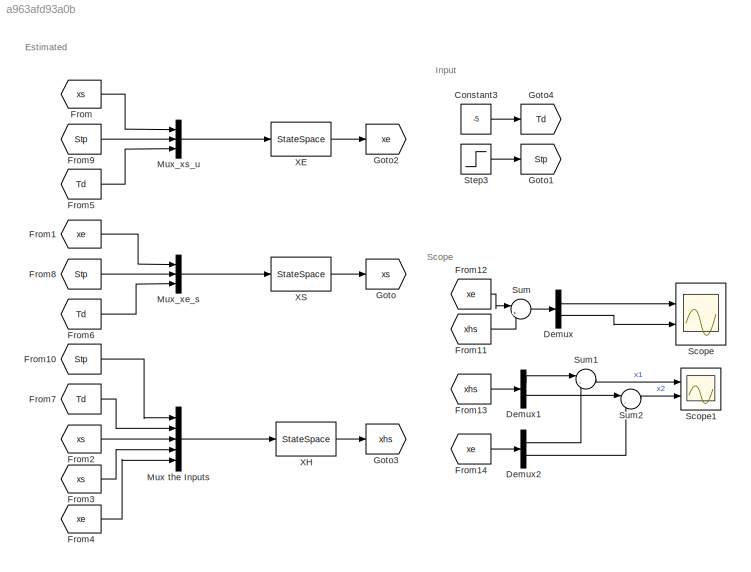
MODEL slx_a963afd93a0b
KIND model
CONFIG AbsTol = auto
CONFIG EnableMultiTasking = off
CONFIG FixedStep = auto
CONFIG MaxStep = .01
CONFIG MinStep = auto
CONFIG PreLoadFcn = A = [-5 , 1  , 1 ; \n      2 ,-7  , 2 ;\n      2 , 1  ,-6 ] ;\nB = [0   , 3.54  ;\n     0   , 0.026 ;\n     144 , 0.026 ] ;\nC = [0 , 0 , 1] ;\nD= [0] ;\nN = obsv(A,C)\ndet (N)\nA_ss = -6 ;\nA_se = [1,2] ;\nA_es = [2 ;\n        1 ] ;\nA_ee = [-7 , 2 ;\n         1 ,-5 ] ;\nB_e = [0 ,  3.54  ;\n       0 ,  0.026 ] ;\nB_s = [144 ,0.026 ] ;\nC_e = [0,0] ;\nC_s = 1 ;\nC_re = C_s*A_se ;\nL = [-13,13]' ;\nA_obs = A_ee - L*C_s*...<+58ch>
CONFIG RelTol = 1e-3
CONFIG SampleTimeConstraint = Unconstrained
CONFIG SolverName = VariableStepAuto
CONFIG StartTime = 0.0
CONFIG StopTime = 10.0
BLOCK [Constant] Constant3
  Value = -5
BLOCK [Demux] Demux
  Outputs = 2
  Ports = [1, 2]
BLOCK [Demux] Demux1
  Outputs = 2
  Ports = [1, 2]
BLOCK [Demux] Demux2
  Outputs = 2
  Ports = [1, 2]
BLOCK [From] From
  GotoTag = xs
BLOCK [From] From1
  GotoTag = xe
BLOCK [From] From10
  GotoTag = Stp
BLOCK [From] From11
  GotoTag = xhs
BLOCK [From] From12
  GotoTag = xe
BLOCK [From] From13
  GotoTag = xhs
BLOCK [From] From14
  GotoTag = xe
BLOCK [From] From2
  GotoTag = xs
BLOCK [From] From3
  GotoTag = xs
BLOCK [From] From4
  GotoTag = xe
BLOCK [From] From5
  GotoTag = Td
BLOCK [From] From6
  GotoTag = Td
BLOCK [From] From7
  GotoTag = Td
BLOCK [From] From8
  GotoTag = Stp
BLOCK [From] From9
  GotoTag = Stp
BLOCK [Goto] Goto
  GotoTag = xs
BLOCK [Goto] Goto1
  GotoTag = Stp
BLOCK [Goto] Goto2
  GotoTag = xe
BLOCK [Goto] Goto3
  GotoTag = xhs
BLOCK [Goto] Goto4
  GotoTag = Td
BLOCK [Mux] Mux the Inputs
  DisplayOption = bar
  Inputs = 5
  Ports = [5, 1]
BLOCK [Mux] Mux_xe_s
  DisplayOption = bar
  Inputs = 3
  Ports = [3, 1]
BLOCK [Mux] Mux_xs_u
  DisplayOption = bar
  Inputs = 3
  Ports = [3, 1]
BLOCK [Scope] Scope
  Floating = off
  NumInputPorts = 2
  Ports = [2]
  ScopeSpecificationString = Simulink.scopes.TimeScopeBlockCfg('CurrentConfiguration', extmgr.ConfigurationSet(extmgr.Configuration('Core','General UI',true),extmgr.Configuration('Core','Source UI',true),extmgr.Configuration('Sources','WiredSimulink',true),extmgr.Configuration('Visuals','Time Domain',true,'SerializedDisplays',{struct('MinYLimReal','-110.17874','MaxYLimReal','78.2668','YLabelReal','','MinYLimMag',' 0.00000','M...<+1347ch>
BLOCK [Scope] Scope1
  Floating = off
  NumInputPorts = 2
  Ports = [2]
  ScopeSpecificationString = Simulink.scopes.TimeScopeBlockCfg('CurrentConfiguration', extmgr.ConfigurationSet(extmgr.Configuration('Core','General UI',true),extmgr.Configuration('Core','Source UI',true),extmgr.Configuration('Sources','WiredSimulink',true,'DataLoggingVariableName','ScopeData1'),extmgr.Configuration('Visuals','Time Domain',true,'SerializedDisplays',{struct('MinYLimReal','-110.17874','MaxYLimReal','78.2668','YL...<+1592ch>
BLOCK [Step] Step3
  SampleTime = 0
BLOCK [Sum] Sum
  Inputs = |+-
  Ports = [2, 1]
BLOCK [Sum] Sum1
  Inputs = |-+
  Ports = [2, 1]
BLOCK [Sum] Sum2
  Inputs = |-+
  Ports = [2, 1]
BLOCK [StateSpace] XE
  A = A_ee
  AllowTunableDMatrix = on
  B = [A_es , B_e ]
  C = eye(2)
  D = zeros(2,3)
  InitialCondition = 0
  ParameterTunability = Unconstrained
  Ports = [1, 1]
BLOCK [StateSpace] XH
  A = A_obs
  AllowTunableDMatrix = on
  B = B_obs
  C = eye(2,2)
  D = zeros(2,6)
  InitialCondition = 0
  ParameterTunability = Unconstrained
  Ports = [1, 1]
BLOCK [StateSpace] XS
  A = A_ss
  AllowTunableDMatrix = on
  B = [A_se , B_s]
  C = eye(1)
  D = zeros(1,4)
  InitialCondition = 0
  ParameterTunability = Unconstrained
  Ports = [1, 1]
ANNOTATION (root): Estimated
ANNOTATION (root): Input
ANNOTATION (root): Scope
LINE Constant3:1 -> Goto4:1
LINE Demux1:1 -> Sum1:1
LINE Demux1:2 -> Sum2:1
LINE Demux2:1 -> Sum1:2
LINE Demux2:2 -> Sum2:2
LINE Demux:1 -> Scope:1
LINE Demux:2 -> Scope:2
LINE From10:1 -> Mux the Inputs:1
LINE From11:1 -> Sum:2
LINE From12:1 -> Sum:1
LINE From13:1 -> Demux1:1
LINE From14:1 -> Demux2:1
LINE From1:1 -> Mux_xe_s:1
LINE From2:1 -> Mux the Inputs:3
LINE From3:1 -> Mux the Inputs:4
LINE From4:1 -> Mux the Inputs:5
LINE From5:1 -> Mux_xs_u:3
LINE From6:1 -> Mux_xe_s:3
LINE From7:1 -> Mux the Inputs:2
LINE From8:1 -> Mux_xe_s:2
LINE From9:1 -> Mux_xs_u:2
LINE From:1 -> Mux_xs_u:1
LINE Mux the Inputs:1 -> XH:1
LINE Mux_xe_s:1 -> XS:1
LINE Mux_xs_u:1 -> XE:1
LINE Step3:1 -> Goto1:1
LINE Sum1:1 -> Scope1:1
LINE Sum2:1 -> Scope1:2
LINE Sum:1 -> Demux:1
LINE XE:1 -> Goto2:1
LINE XH:1 -> Goto3:1
LINE XS:1 -> Goto:1
